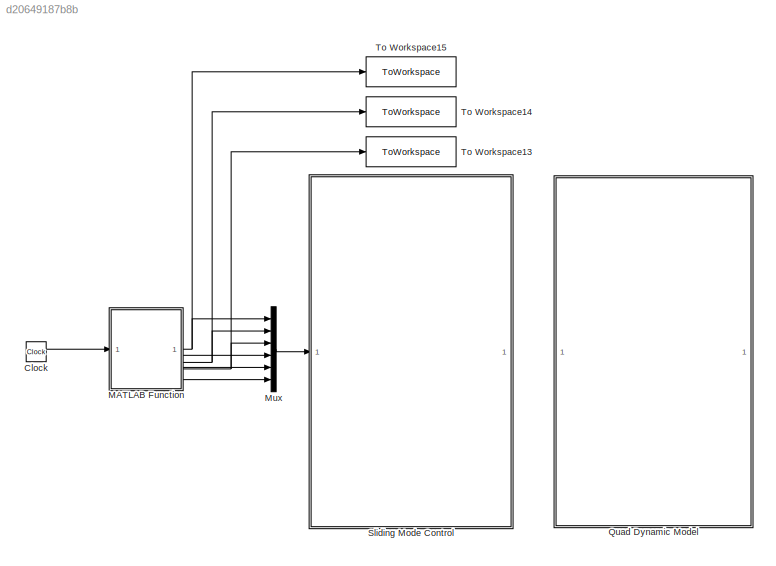
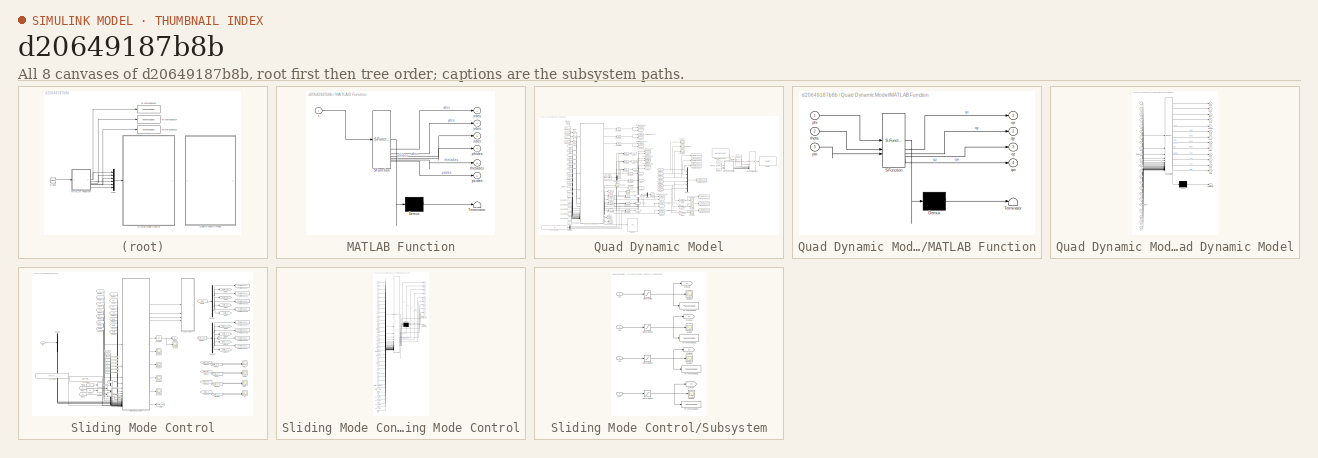
[diagram: thumbnail index - all 8 canvases of the model, root first then tree order]
MODEL slx_d20649187b8b
KIND model
CONFIG AbsTol = auto
CONFIG EnableMultiTasking = off
CONFIG FixedStep = 0.01
CONFIG InitFcn = C = [0; 0; 0];\n            % distance between camera and world frame\nang_initial = [0.0 0.0 0.0];  % initial orientation, [pi 0 pi/2] \n\ninit_pose = [C ; ang_initial'];\n\ndT=0.25;\ng = 9.81;\nmass = 1; L = 0.2; \nIx = 0.008; \nIy = 0.008;\nIz = 0.017;\nc = 0.088;\n\n
CONFIG MaxStep = auto
CONFIG MinStep = auto
CONFIG RelTol = 1e-3
CONFIG SampleTimeConstraint = Unconstrained
CONFIG SolverName = ode4
CONFIG StartTime = 0.0
CONFIG StopTime = 200
BLOCK [Clock] Clock
BLOCK [SubSystem] MATLAB Function
  ErrorFcn = Stateflow.Translate.translate
  PermitHierarchicalResolution = ExplicitOnly
  SFBlockType = MATLAB Function
  TreatAsAtomicUnit = on
BLOCK [Demux] MATLAB Function/ Demux 
  Outputs = 1
BLOCK [S-Function] MATLAB Function/ SFunction 
  EnableBusSupport = on
  FunctionName = sf_sfun
  PortCounts = [1 7]
  SFcnIsStateOwnerBlock = off
  SFunctionDeploymentMode = off
  Tag = Stateflow S-Function 1
BLOCK [Terminator] MATLAB Function/ Terminator 
BLOCK [Outport] MATLAB Function/phides
  Port = 4
BLOCK [Outport] MATLAB Function/psides
  Port = 6
BLOCK [Inport] MATLAB Function/t
BLOCK [Outport] MATLAB Function/thetades
  Port = 5
BLOCK [Outport] MATLAB Function/xdes
BLOCK [Outport] MATLAB Function/ydes
  Port = 2
BLOCK [Outport] MATLAB Function/zdes
  Port = 3
BLOCK [Mux] Mux
  DisplayOption = bar
  Inputs = 6
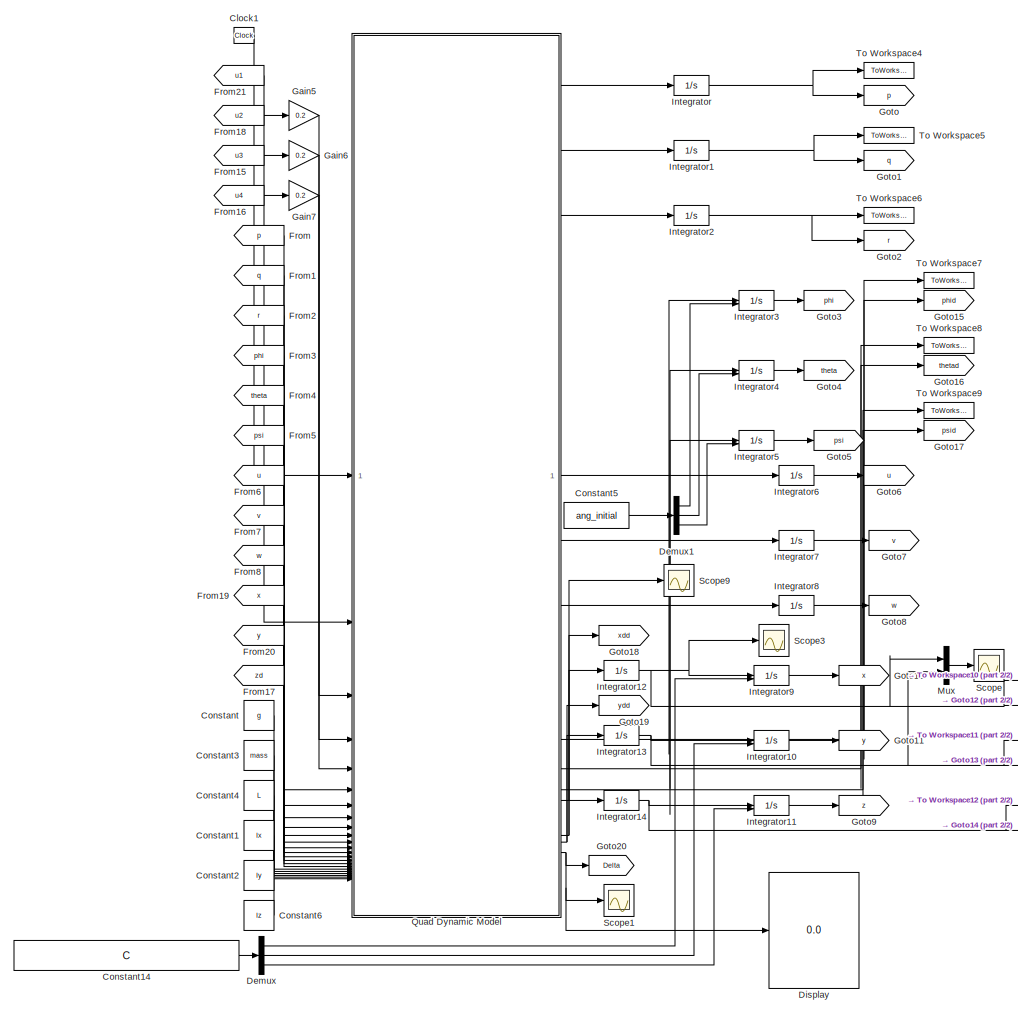
[diagram: Quad Dynamic Model - part 1/2, left side, full height]
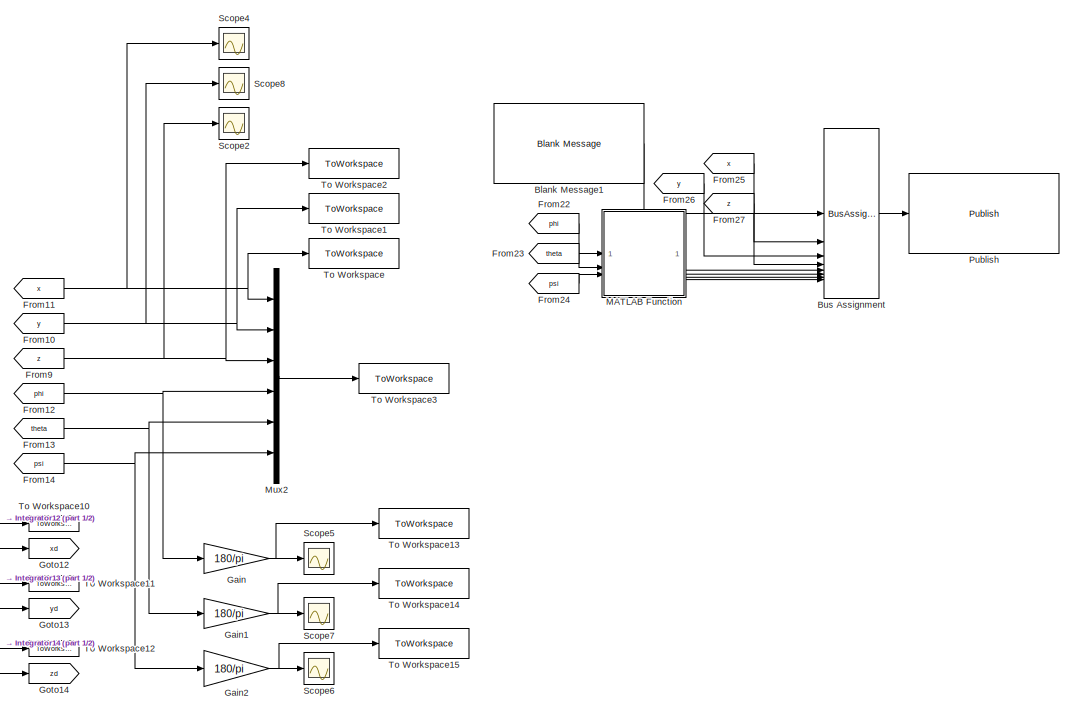
[diagram: Quad Dynamic Model - part 2/2, middle right region]
BLOCK [SubSystem] Quad Dynamic Model
BLOCK [Reference] Quad Dynamic Model/Blank Message1  REF=ros2lib/Blank Message  (lib defined in slx_3c1549211f48)
  SourceBlock = ros2lib/Blank Message
  SourceType = ROS2 Blank Message
BLOCK [BusAssignment] Quad Dynamic Model/Bus Assignment
  AssignedSignals = pose.position.x,pose.position.y,pose.position.z,pose.orientation.x,pose.orientation.y,pose.orientation.z,pose.orientation.w
BLOCK [Clock] Quad Dynamic Model/Clock1
BLOCK [Constant] Quad Dynamic Model/Constant
  Value = g
BLOCK [Constant] Quad Dynamic Model/Constant1
  Value = Ix
BLOCK [Constant] Quad Dynamic Model/Constant14
  Value = C
BLOCK [Constant] Quad Dynamic Model/Constant2
  Value = Iy
BLOCK [Constant] Quad Dynamic Model/Constant3
  Value = mass
BLOCK [Constant] Quad Dynamic Model/Constant4
  Value = L
BLOCK [Constant] Quad Dynamic Model/Constant5
  Value = ang_initial
BLOCK [Constant] Quad Dynamic Model/Constant6
  Value = Iz
BLOCK [Demux] Quad Dynamic Model/Demux
  Outputs = 3
BLOCK [Demux] Quad Dynamic Model/Demux1
  Outputs = 3
BLOCK [Display] Quad Dynamic Model/Display
  Decimation = 1
BLOCK [From] Quad Dynamic Model/From
  GotoTag = p
  TagVisibility = global
BLOCK [From] Quad Dynamic Model/From1
  GotoTag = q
  TagVisibility = global
BLOCK [From] Quad Dynamic Model/From10
  GotoTag = y
  TagVisibility = global
BLOCK [From] Quad Dynamic Model/From11
  GotoTag = x
  TagVisibility = global
BLOCK [From] Quad Dynamic Model/From12
  GotoTag = phi
  TagVisibility = global
BLOCK [From] Quad Dynamic Model/From13
  GotoTag = theta
  TagVisibility = global
BLOCK [From] Quad Dynamic Model/From14
  GotoTag = psi
  TagVisibility = global
BLOCK [From] Quad Dynamic Model/From15
  GotoTag = u3
  TagVisibility = global
BLOCK [From] Quad Dynamic Model/From16
  GotoTag = u4
  TagVisibility = global
BLOCK [From] Quad Dynamic Model/From17
  GotoTag = zd
  TagVisibility = global
BLOCK [From] Quad Dynamic Model/From18
  GotoTag = u2
  TagVisibility = global
BLOCK [From] Quad Dynamic Model/From19
  GotoTag = x
  TagVisibility = global
BLOCK [From] Quad Dynamic Model/From2
  GotoTag = r
  TagVisibility = global
BLOCK [From] Quad Dynamic Model/From20
  GotoTag = y
  TagVisibility = global
BLOCK [From] Quad Dynamic Model/From21
  GotoTag = u1
  TagVisibility = global
BLOCK [From] Quad Dynamic Model/From22
  GotoTag = phi
  TagVisibility = global
BLOCK [From] Quad Dynamic Model/From23
  GotoTag = theta
  TagVisibility = global
BLOCK [From] Quad Dynamic Model/From24
  GotoTag = psi
  TagVisibility = global
BLOCK [From] Quad Dynamic Model/From25
  GotoTag = x
  TagVisibility = global
BLOCK [From] Quad Dynamic Model/From26
  GotoTag = y
  TagVisibility = global
BLOCK [From] Quad Dynamic Model/From27
  GotoTag = z
  TagVisibility = global
BLOCK [From] Quad Dynamic Model/From3
  GotoTag = phi
  TagVisibility = global
BLOCK [From] Quad Dynamic Model/From4
  GotoTag = theta
  TagVisibility = global
BLOCK [From] Quad Dynamic Model/From5
  GotoTag = psi
  TagVisibility = global
BLOCK [From] Quad Dynamic Model/From6
  GotoTag = u
  TagVisibility = global
BLOCK [From] Quad Dynamic Model/From7
  GotoTag = v
  TagVisibility = global
BLOCK [From] Quad Dynamic Model/From8
  GotoTag = w
  TagVisibility = global
BLOCK [From] Quad Dynamic Model/From9
  GotoTag = z
  TagVisibility = global
BLOCK [Gain] Quad Dynamic Model/Gain
  Gain = 180/pi
BLOCK [Gain] Quad Dynamic Model/Gain1
  Gain = 180/pi
BLOCK [Gain] Quad Dynamic Model/Gain2
  Gain = 180/pi
BLOCK [Gain] Quad Dynamic Model/Gain5
  Gain = 0.2
BLOCK [Gain] Quad Dynamic Model/Gain6
  Gain = 0.2
BLOCK [Gain] Quad Dynamic Model/Gain7
  Gain = 0.2
BLOCK [Goto] Quad Dynamic Model/Goto
  GotoTag = p
  TagVisibility = global
BLOCK [Goto] Quad Dynamic Model/Goto1
  GotoTag = q
  TagVisibility = global
BLOCK [Goto] Quad Dynamic Model/Goto10
  GotoTag = x
  TagVisibility = global
BLOCK [Goto] Quad Dynamic Model/Goto11
  GotoTag = y
  TagVisibility = global
BLOCK [Goto] Quad Dynamic Model/Goto12
  GotoTag = xd
  TagVisibility = global
BLOCK [Goto] Quad Dynamic Model/Goto13
  GotoTag = yd
  TagVisibility = global
BLOCK [Goto] Quad Dynamic Model/Goto14
  GotoTag = zd
  TagVisibility = global
BLOCK [Goto] Quad Dynamic Model/Goto15
  GotoTag = phid
  TagVisibility = global
BLOCK [Goto] Quad Dynamic Model/Goto16
  GotoTag = thetad
  TagVisibility = global
BLOCK [Goto] Quad Dynamic Model/Goto17
  GotoTag = psid
  TagVisibility = global
BLOCK [Goto] Quad Dynamic Model/Goto18
  GotoTag = xdd
  TagVisibility = global
BLOCK [Goto] Quad Dynamic Model/Goto19
  GotoTag = ydd
  TagVisibility = global
BLOCK [Goto] Quad Dynamic Model/Goto2
  GotoTag = r
  TagVisibility = global
BLOCK [Goto] Quad Dynamic Model/Goto20
  GotoTag = Delta
  TagVisibility = global
BLOCK [Goto] Quad Dynamic Model/Goto3
  GotoTag = phi
  TagVisibility = global
BLOCK [Goto] Quad Dynamic Model/Goto4
  GotoTag = theta
  TagVisibility = global
BLOCK [Goto] Quad Dynamic Model/Goto5
  GotoTag = psi
  TagVisibility = global
BLOCK [Goto] Quad Dynamic Model/Goto6
  GotoTag = u
  TagVisibility = global
BLOCK [Goto] Quad Dynamic Model/Goto7
  GotoTag = v
  TagVisibility = global
BLOCK [Goto] Quad Dynamic Model/Goto8
  GotoTag = w
  TagVisibility = global
BLOCK [Goto] Quad Dynamic Model/Goto9
  GotoTag = z
  TagVisibility = global
BLOCK [Integrator] Quad Dynamic Model/Integrator
  InitialCondition = -0.003775510005653
BLOCK [Integrator] Quad Dynamic Model/Integrator1
  InitialCondition = 0.003931066952646
BLOCK [Integrator] Quad Dynamic Model/Integrator10
  InitialConditionSource = external
BLOCK [Integrator] Quad Dynamic Model/Integrator11
  InitialConditionSource = external
BLOCK [Integrator] Quad Dynamic Model/Integrator12
BLOCK [Integrator] Quad Dynamic Model/Integrator13
BLOCK [Integrator] Quad Dynamic Model/Integrator14
BLOCK [Integrator] Quad Dynamic Model/Integrator2
  InitialCondition = 0.005723309703171
BLOCK [Integrator] Quad Dynamic Model/Integrator3
  InitialConditionSource = external
BLOCK [Integrator] Quad Dynamic Model/Integrator4
  InitialConditionSource = external
BLOCK [Integrator] Quad Dynamic Model/Integrator5
  InitialConditionSource = external
BLOCK [Integrator] Quad Dynamic Model/Integrator6
BLOCK [Integrator] Quad Dynamic Model/Integrator7
BLOCK [Integrator] Quad Dynamic Model/Integrator8
BLOCK [Integrator] Quad Dynamic Model/Integrator9
  InitialConditionSource = external
BLOCK [SubSystem] Quad Dynamic Model/MATLAB Function
  ErrorFcn = Stateflow.Translate.translate
  PermitHierarchicalResolution = ExplicitOnly
  SFBlockType = MATLAB Function
  TreatAsAtomicUnit = on
BLOCK [Demux] Quad Dynamic Model/MATLAB Function/ Demux 
  Outputs = 1
BLOCK [S-Function] Quad Dynamic Model/MATLAB Function/ SFunction 
  EnableBusSupport = on
  FunctionName = sf_sfun
  PortCounts = [3 5]
  SFcnIsStateOwnerBlock = off
  SFunctionDeploymentMode = off
  Tag = Stateflow S-Function 3
BLOCK [Terminator] Quad Dynamic Model/MATLAB Function/ Terminator 
BLOCK [Inport] Quad Dynamic Model/MATLAB Function/phi
BLOCK [Inport] Quad Dynamic Model/MATLAB Function/psi
  Port = 3
BLOCK [Outport] Quad Dynamic Model/MATLAB Function/qw
  Port = 4
BLOCK [Outport] Quad Dynamic Model/MATLAB Function/qx
BLOCK [Outport] Quad Dynamic Model/MATLAB Function/qy
  Port = 2
BLOCK [Outport] Quad Dynamic Model/MATLAB Function/qz
  Port = 3
BLOCK [Inport] Quad Dynamic Model/MATLAB Function/theta
  Port = 2
BLOCK [Mux] Quad Dynamic Model/Mux
  DisplayOption = bar
  Inputs = 2
BLOCK [Mux] Quad Dynamic Model/Mux2
  DisplayOption = bar
  Inputs = 6
BLOCK [Reference] Quad Dynamic Model/Publish  REF=ros2lib/Publish  (lib defined in slx_3c1549211f48)
  SourceBlock = ros2lib/Publish
  SourceType = ROS2 Publish
BLOCK [SubSystem] Quad Dynamic Model/Quad Dynamic Model
  ErrorFcn = Stateflow.Translate.translate
  PermitHierarchicalResolution = ExplicitOnly
  SFBlockType = MATLAB Function
  TreatAsAtomicUnit = on
BLOCK [Demux] Quad Dynamic Model/Quad Dynamic Model/ Demux 
  Outputs = 1
BLOCK [S-Function] Quad Dynamic Model/Quad Dynamic Model/ SFunction 
  EnableBusSupport = on
  FunctionName = sf_sfun
  PortCounts = [23 14]
  SFcnIsStateOwnerBlock = off
  SFunctionDeploymentMode = off
  Tag = Stateflow S-Function 2
BLOCK [Terminator] Quad Dynamic Model/Quad Dynamic Model/ Terminator 
BLOCK [Outport] Quad Dynamic Model/Quad Dynamic Model/Delta
  Port = 13
BLOCK [Inport] Quad Dynamic Model/Quad Dynamic Model/Ixx
  Port = 21
BLOCK [Inport] Quad Dynamic Model/Quad Dynamic Model/Iyy
  Port = 22
BLOCK [Inport] Quad Dynamic Model/Quad Dynamic Model/Izz
  Port = 23
BLOCK [Inport] Quad Dynamic Model/Quad Dynamic Model/L
  Port = 20
BLOCK [Inport] Quad Dynamic Model/Quad Dynamic Model/g
  Port = 18
BLOCK [Inport] Quad Dynamic Model/Quad Dynamic Model/mass
  Port = 19
BLOCK [Inport] Quad Dynamic Model/Quad Dynamic Model/p
  Port = 6
BLOCK [Outport] Quad Dynamic Model/Quad Dynamic Model/pdot
BLOCK [Inport] Quad Dynamic Model/Quad Dynamic Model/phi
  Port = 9
BLOCK [Outport] Quad Dynamic Model/Quad Dynamic Model/phid
  Port = 4
BLOCK [Inport] Quad Dynamic Model/Quad Dynamic Model/psi
  Port = 11
BLOCK [Outport] Quad Dynamic Model/Quad Dynamic Model/psid
  Port = 6
BLOCK [Inport] Quad Dynamic Model/Quad Dynamic Model/q
  Port = 7
BLOCK [Outport] Quad Dynamic Model/Quad Dynamic Model/qdot
  Port = 2
BLOCK [Inport] Quad Dynamic Model/Quad Dynamic Model/r
  Port = 8
BLOCK [Outport] Quad Dynamic Model/Quad Dynamic Model/rdot
  Port = 3
BLOCK [Inport] Quad Dynamic Model/Quad Dynamic Model/t
BLOCK [Inport] Quad Dynamic Model/Quad Dynamic Model/theta
  Port = 10
BLOCK [Outport] Quad Dynamic Model/Quad Dynamic Model/thetad
  Port = 5
BLOCK [Inport] Quad Dynamic Model/Quad Dynamic Model/u
  Port = 12
BLOCK [Inport] Quad Dynamic Model/Quad Dynamic Model/u1
  Port = 2
BLOCK [Inport] Quad Dynamic Model/Quad Dynamic Model/u2
  Port = 3
BLOCK [Inport] Quad Dynamic Model/Quad Dynamic Model/u3
  Port = 4
BLOCK [Inport] Quad Dynamic Model/Quad Dynamic Model/u4
  Port = 5
BLOCK [Outport] Quad Dynamic Model/Quad Dynamic Model/udot
  Port = 7
BLOCK [Inport] Quad Dynamic Model/Quad Dynamic Model/v
  Port = 13
BLOCK [Outport] Quad Dynamic Model/Quad Dynamic Model/vdot
  Port = 8
BLOCK [Inport] Quad Dynamic Model/Quad Dynamic Model/w
  Port = 14
BLOCK [Outport] Quad Dynamic Model/Quad Dynamic Model/wdot
  Port = 9
BLOCK [Inport] Quad Dynamic Model/Quad Dynamic Model/x
  Port = 15
BLOCK [Outport] Quad Dynamic Model/Quad Dynamic Model/xdd
  Port = 10
BLOCK [Inport] Quad Dynamic Model/Quad Dynamic Model/y
  Port = 16
BLOCK [Outport] Quad Dynamic Model/Quad Dynamic Model/ydd
  Port = 11
BLOCK [Inport] Quad Dynamic Model/Quad Dynamic Model/zd
  Port = 17
BLOCK [Outport] Quad Dynamic Model/Quad Dynamic Model/zdd
  Port = 12
BLOCK [Scope] Quad Dynamic Model/Scope
  Floating = off
  NumInputPorts = 1
  ScopeSpecificationString = Simulink.scopes.TimeScopeBlockCfg('CurrentConfiguration', extmgr.ConfigurationSet(extmgr.Configuration('Core','General UI',true),extmgr.Configuration('Core','Source UI',true),extmgr.Configuration('Sources','WiredSimulink',true,'DataLoggingVariableName','ScopeData2'),extmgr.Configuration('Visuals','Time Domain',true,'SerializedDisplays',{struct('MinYLimReal','-0.08367','MaxYLimReal','0.08367','YLab...<+1554ch>
BLOCK [Scope] Quad Dynamic Model/Scope1
  Floating = off
  NumInputPorts = 1
  ScopeSpecificationString = Simulink.scopes.TimeScopeBlockCfg('CurrentConfiguration', extmgr.ConfigurationSet(extmgr.Configuration('Core','General UI',true),extmgr.Configuration('Core','Source UI',true),extmgr.Configuration('Sources','WiredSimulink',true,'DataLoggingVariableName','ScopeData1'),extmgr.Configuration('Visuals','Time Domain',true,'SerializedDisplays',{struct('MinYLimReal','-0.625','MaxYLimReal','0.625','YLabelRe...<+1617ch>
BLOCK [Scope] Quad Dynamic Model/Scope2
  Floating = off
  NumInputPorts = 1
  ScopeSpecificationString = Simulink.scopes.TimeScopeBlockCfg('CurrentConfiguration', extmgr.ConfigurationSet(extmgr.Configuration('Core','General UI',true),extmgr.Configuration('Core','Source UI',true),extmgr.Configuration('Sources','WiredSimulink',true,'DataLoggingVariableName','ScopeData2'),extmgr.Configuration('Visuals','Time Domain',true,'SerializedDisplays',{struct('MinYLimReal','-0.25379','MaxYLimReal','2.25395','YLab...<+1556ch>
BLOCK [Scope] Quad Dynamic Model/Scope3
  Floating = off
  NumInputPorts = 1
  ScopeSpecificationString = Simulink.scopes.TimeScopeBlockCfg('CurrentConfiguration', extmgr.ConfigurationSet(extmgr.Configuration('Core','General UI',true),extmgr.Configuration('Core','Source UI',true),extmgr.Configuration('Sources','WiredSimulink',true,'DataLoggingVariableName','ScopeData4'),extmgr.Configuration('Visuals','Time Domain',true,'SerializedDisplays',{struct('MinYLimReal','-0.10666','MaxYLimReal','0.11061','YLab...<+1566ch>
BLOCK [Scope] Quad Dynamic Model/Scope4
  Floating = off
  NumInputPorts = 1
  ScopeSpecificationString = Simulink.scopes.TimeScopeBlockCfg('CurrentConfiguration', extmgr.ConfigurationSet(extmgr.Configuration('Core','General UI',true),extmgr.Configuration('Core','Source UI',true),extmgr.Configuration('Sources','WiredSimulink',true,'DataLoggingVariableName','ScopeData3'),extmgr.Configuration('Visuals','Time Domain',true,'SerializedDisplays',{struct('MinYLimReal','-0.03404','MaxYLimReal','0.23647','YLab...<+1543ch>
BLOCK [Scope] Quad Dynamic Model/Scope5
  Floating = off
  NumInputPorts = 1
  ScopeSpecificationString = Simulink.scopes.TimeScopeBlockCfg('CurrentConfiguration', extmgr.ConfigurationSet(extmgr.Configuration('Core','General UI',true),extmgr.Configuration('Core','Source UI',true),extmgr.Configuration('Sources','WiredSimulink',true,'DataLoggingVariableName','ScopeData4'),extmgr.Configuration('Visuals','Time Domain',true,'SerializedDisplays',{struct('MinYLimReal','-0.47265','MaxYLimReal','0.4732','YLabe...<+1542ch>
BLOCK [Scope] Quad Dynamic Model/Scope6
  Floating = off
  NumInputPorts = 1
  ScopeSpecificationString = Simulink.scopes.TimeScopeBlockCfg('CurrentConfiguration', extmgr.ConfigurationSet(extmgr.Configuration('Core','General UI',true),extmgr.Configuration('Core','Source UI',true),extmgr.Configuration('Sources','WiredSimulink',true,'DataLoggingVariableName','ScopeData5'),extmgr.Configuration('Visuals','Time Domain',true,'SerializedDisplays',{struct('MinYLimReal','-0.3925','MaxYLimReal','0.1772','YLabel...<+1524ch>
BLOCK [Scope] Quad Dynamic Model/Scope7
  Floating = off
  NumInputPorts = 1
  ScopeSpecificationString = Simulink.scopes.TimeScopeBlockCfg('CurrentConfiguration', extmgr.ConfigurationSet(extmgr.Configuration('Core','General UI',true),extmgr.Configuration('Core','Source UI',true),extmgr.Configuration('Sources','WiredSimulink',true,'DataLoggingVariableName','ScopeData6'),extmgr.Configuration('Visuals','Time Domain',true,'SerializedDisplays',{struct('MinYLimReal','-0.48663','MaxYLimReal','0.58015','YLab...<+1530ch>
BLOCK [Scope] Quad Dynamic Model/Scope8
  Floating = off
  NumInputPorts = 1
  ScopeSpecificationString = Simulink.scopes.TimeScopeBlockCfg('CurrentConfiguration', extmgr.ConfigurationSet(extmgr.Configuration('Core','General UI',true),extmgr.Configuration('Core','Source UI',true),extmgr.Configuration('Sources','WiredSimulink',true,'DataLoggingVariableName','ScopeData1'),extmgr.Configuration('Visuals','Time Domain',true,'SerializedDisplays',{struct('MinYLimReal','-0.1253','MaxYLimReal','1.12526','YLabe...<+1535ch>
BLOCK [Scope] Quad Dynamic Model/Scope9
  Floating = off
  NumInputPorts = 1
  ScopeSpecificationString = Simulink.scopes.TimeScopeBlockCfg('CurrentConfiguration', extmgr.ConfigurationSet(extmgr.Configuration('Core','General UI',true),extmgr.Configuration('Core','Source UI',true),extmgr.Configuration('Sources','WiredSimulink',true,'DataLoggingVariableName','ScopeData5'),extmgr.Configuration('Visuals','Time Domain',true,'SerializedDisplays',{struct('MinYLimReal','-0.0733','MaxYLimReal','0.08311','YLabe...<+1545ch>
BLOCK [ToWorkspace] Quad Dynamic Model/To Workspace
  FixptAsFi = on
  MaxDataPoints = inf
  SampleTime = -1
  Save2DSignal = 2-D array (concatenate along first dimension)
  VariableName = x
BLOCK [ToWorkspace] Quad Dynamic Model/To Workspace1
  FixptAsFi = on
  MaxDataPoints = inf
  SampleTime = -1
  Save2DSignal = 2-D array (concatenate along first dimension)
  VariableName = y
BLOCK [ToWorkspace] Quad Dynamic Model/To Workspace10
  FixptAsFi = on
  MaxDataPoints = inf
  SampleTime = -1
  VariableName = xd
BLOCK [ToWorkspace] Quad Dynamic Model/To Workspace11
  FixptAsFi = on
  MaxDataPoints = inf
  SampleTime = -1
  VariableName = yd
BLOCK [ToWorkspace] Quad Dynamic Model/To Workspace12
  FixptAsFi = on
  MaxDataPoints = inf
  SampleTime = -1
  VariableName = zd
BLOCK [ToWorkspace] Quad Dynamic Model/To Workspace13
  FixptAsFi = on
  MaxDataPoints = inf
  SampleTime = -1
  Save2DSignal = 2-D array (concatenate along first dimension)
  VariableName = phi
BLOCK [ToWorkspace] Quad Dynamic Model/To Workspace14
  FixptAsFi = on
  MaxDataPoints = inf
  SampleTime = -1
  Save2DSignal = 2-D array (concatenate along first dimension)
  VariableName = theta
BLOCK [ToWorkspace] Quad Dynamic Model/To Workspace15
  FixptAsFi = on
  MaxDataPoints = inf
  SampleTime = -1
  Save2DSignal = 2-D array (concatenate along first dimension)
  VariableName = psi
BLOCK [ToWorkspace] Quad Dynamic Model/To Workspace2
  FixptAsFi = on
  MaxDataPoints = inf
  SampleTime = -1
  Save2DSignal = 2-D array (concatenate along first dimension)
  VariableName = z
BLOCK [ToWorkspace] Quad Dynamic Model/To Workspace3
  FixptAsFi = on
  MaxDataPoints = inf
  SampleTime = -1
  Save2DSignal = 2-D array (concatenate along first dimension)
  VariableName = pose
BLOCK [ToWorkspace] Quad Dynamic Model/To Workspace4
  FixptAsFi = on
  MaxDataPoints = inf
  SampleTime = -1
  VariableName = p
BLOCK [ToWorkspace] Quad Dynamic Model/To Workspace5
  FixptAsFi = on
  MaxDataPoints = inf
  SampleTime = -1
  VariableName = q
BLOCK [ToWorkspace] Quad Dynamic Model/To Workspace6
  FixptAsFi = on
  MaxDataPoints = inf
  SampleTime = -1
  VariableName = r
BLOCK [ToWorkspace] Quad Dynamic Model/To Workspace7
  FixptAsFi = on
  MaxDataPoints = inf
  SampleTime = -1
  VariableName = phid
BLOCK [ToWorkspace] Quad Dynamic Model/To Workspace8
  FixptAsFi = on
  MaxDataPoints = inf
  SampleTime = -1
  VariableName = thetad
BLOCK [ToWorkspace] Quad Dynamic Model/To Workspace9
  FixptAsFi = on
  MaxDataPoints = inf
  SampleTime = -1
  VariableName = psid
BLOCK [SubSystem] Sliding Mode Control
BLOCK [Scope] Sliding Mode Control/Alt
  Floating = off
  NumInputPorts = 2
  ScopeSpecificationString = Simulink.scopes.TimeScopeBlockCfg('CurrentConfiguration', extmgr.ConfigurationSet(extmgr.Configuration('Core','General UI',true),extmgr.Configuration('Core','Source UI',true),extmgr.Configuration('Sources','WiredSimulink',true,'DataLoggingVariableName','ScopeData1'),extmgr.Configuration('Visuals','Time Domain',true,'SerializedDisplays',{struct('MinYLimReal','-30.07624','MaxYLimReal','26.81308','YL...<+1550ch>
BLOCK [Clock] Sliding Mode Control/Clock
BLOCK [Constant] Sliding Mode Control/Constant
  Value = g
BLOCK [Constant] Sliding Mode Control/Constant1
  Value = mass
BLOCK [Constant] Sliding Mode Control/Constant10
  Value = Iz
BLOCK [Constant] Sliding Mode Control/Constant2
  Value = L
BLOCK [Constant] Sliding Mode Control/Constant3
  Value = Ix
BLOCK [Constant] Sliding Mode Control/Constant4
  Value = Iy
BLOCK [Constant] Sliding Mode Control/Constant5
  Value = c
BLOCK [Constant] Sliding Mode Control/Constant8
  Value = -1 + (1 - (-1)) .* rand(14, 10)
BLOCK [Constant] Sliding Mode Control/Constant9
  Value = 1.2 + (4.2 - 1.2) * rand(10, 1)
BLOCK [Demux] Sliding Mode Control/Demux
  Outputs = 6
BLOCK [Demux] Sliding Mode Control/Demux1
BLOCK [Demux] Sliding Mode Control/Demux2
BLOCK [From] Sliding Mode Control/From
  GotoTag = u2
  TagVisibility = global
BLOCK [From] Sliding Mode Control/From1
  GotoTag = xd
  TagVisibility = global
BLOCK [From] Sliding Mode Control/From10
  GotoTag = Delta_phi
BLOCK [From] Sliding Mode Control/From11
  GotoTag = Delta_theta
BLOCK [From] Sliding Mode Control/From12
  GotoTag = Delta_psi
BLOCK [From] Sliding Mode Control/From13
  GotoTag = Delta_z
BLOCK [From] Sliding Mode Control/From14
  GotoTag = zd
  TagVisibility = global
BLOCK [From] Sliding Mode Control/From15
  GotoTag = phi
  TagVisibility = global
BLOCK [From] Sliding Mode Control/From16
  GotoTag = theta
  TagVisibility = global
BLOCK [From] Sliding Mode Control/From17
  GotoTag = psi
  TagVisibility = global
BLOCK [From] Sliding Mode Control/From18
  GotoTag = phid
  TagVisibility = global
BLOCK [From] Sliding Mode Control/From19
  GotoTag = thetad
  TagVisibility = global
BLOCK [From] Sliding Mode Control/From2
  GotoTag = yd
  TagVisibility = global
BLOCK [From] Sliding Mode Control/From20
  GotoTag = psid
  TagVisibility = global
BLOCK [From] Sliding Mode Control/From21
  GotoTag = y
  TagVisibility = global
BLOCK [From] Sliding Mode Control/From22
  GotoTag = x
  TagVisibility = global
BLOCK [From] Sliding Mode Control/From23
  GotoTag = z
  TagVisibility = global
BLOCK [From] Sliding Mode Control/From24
  GotoTag = xdd
  TagVisibility = global
BLOCK [From] Sliding Mode Control/From25
  GotoTag = ydd
  TagVisibility = global
BLOCK [From] Sliding Mode Control/From26
  GotoTag = Delta_h_phi
BLOCK [From] Sliding Mode Control/From27
  GotoTag = Delta_h_theta
BLOCK [From] Sliding Mode Control/From28
  GotoTag = Delta_h_psi
BLOCK [From] Sliding Mode Control/From29
  GotoTag = Delta_h_z
BLOCK [From] Sliding Mode Control/From3
  GotoTag = u3
  TagVisibility = global
BLOCK [From] Sliding Mode Control/From30
  GotoTag = Delta_hat
  TagVisibility = global
BLOCK [From] Sliding Mode Control/From4
  GotoTag = u4
  TagVisibility = global
BLOCK [From] Sliding Mode Control/From5
  GotoTag = u1
  TagVisibility = global
BLOCK [From] Sliding Mode Control/From7
  GotoTag = W
  TagVisibility = global
BLOCK [From] Sliding Mode Control/From9
  GotoTag = Delta
  TagVisibility = global
BLOCK [Gain] Sliding Mode Control/Gain1
  Gain = 4.5
BLOCK [Goto] Sliding Mode Control/Goto
  GotoTag = Delta_hat
  TagVisibility = global
BLOCK [Goto] Sliding Mode Control/Goto1
  GotoTag = Delta_phi
BLOCK [Goto] Sliding Mode Control/Goto10
  GotoTag = Delta_h_psi
BLOCK [Goto] Sliding Mode Control/Goto11
  GotoTag = Delta_h_z
BLOCK [Goto] Sliding Mode Control/Goto2
  GotoTag = Delta_theta
BLOCK [Goto] Sliding Mode Control/Goto3
  GotoTag = Delta_psi
BLOCK [Goto] Sliding Mode Control/Goto4
  GotoTag = Delta_z
BLOCK [Goto] Sliding Mode Control/Goto6
  GotoTag = W
  TagVisibility = global
BLOCK [Goto] Sliding Mode Control/Goto8
  GotoTag = Delta_h_phi
BLOCK [Goto] Sliding Mode Control/Goto9
  GotoTag = Delta_h_theta
BLOCK [Inport] Sliding Mode Control/In1
BLOCK [Integrator] Sliding Mode Control/Integrator8
  InitialCondition = zeros(10, 4)
BLOCK [Memory] Sliding Mode Control/Memory
BLOCK [Memory] Sliding Mode Control/Memory1
BLOCK [Memory] Sliding Mode Control/Memory2
BLOCK [Memory] Sliding Mode Control/Memory3
BLOCK [Scope] Sliding Mode Control/Phi
  Floating = off
  NumInputPorts = 2
  ScopeSpecificationString = Simulink.scopes.TimeScopeBlockCfg('CurrentConfiguration', extmgr.ConfigurationSet(extmgr.Configuration('Core','General UI',true),extmgr.Configuration('Core','Source UI',true),extmgr.Configuration('Sources','WiredSimulink',true,'DataLoggingVariableName','ScopeData2'),extmgr.Configuration('Visuals','Time Domain',true,'SerializedDisplays',{struct('MinYLimReal','-6.6449','MaxYLimReal','6.65264','YLabe...<+1544ch>
BLOCK [Scope] Sliding Mode Control/Psi
  Floating = off
  NumInputPorts = 2
  ScopeSpecificationString = Simulink.scopes.TimeScopeBlockCfg('CurrentConfiguration', extmgr.ConfigurationSet(extmgr.Configuration('Core','General UI',true),extmgr.Configuration('Core','Source UI',true),extmgr.Configuration('Sources','WiredSimulink',true,'DataLoggingVariableName','ScopeData3'),extmgr.Configuration('Visuals','Time Domain',true,'SerializedDisplays',{struct('MinYLimReal','-2.63411','MaxYLimReal','2.84561','YLab...<+1558ch>
BLOCK [Scope] Sliding Mode Control/Scope
  Floating = off
  NumInputPorts = 1
  ScopeSpecificationString = Simulink.scopes.TimeScopeBlockCfg('CurrentConfiguration', extmgr.ConfigurationSet(extmgr.Configuration('Core','General UI',true),extmgr.Configuration('Core','Source UI',true),extmgr.Configuration('Sources','WiredSimulink',true,'DataLoggingVariableName','ScopeData1'),extmgr.Configuration('Visuals','Time Domain',true,'SerializedDisplays',{struct('MinYLimReal','-13.79802','MaxYLimReal','24.62049','YL...<+2191ch>
BLOCK [Scope] Sliding Mode Control/Scope4
  Floating = off
  NumInputPorts = 1
  ScopeSpecificationString = Simulink.scopes.TimeScopeBlockCfg('CurrentConfiguration', extmgr.ConfigurationSet(extmgr.Configuration('Core','General UI',true),extmgr.Configuration('Core','Source UI',true),extmgr.Configuration('Sources','WiredSimulink',true,'DataLoggingVariableName','ScopeData1'),extmgr.Configuration('Visuals','Time Domain',true,'SerializedDisplays',{struct('MinYLimReal','-16.875','MaxYLimReal','1.875','YLabelR...<+1536ch>
BLOCK [Scope] Sliding Mode Control/Scope5
  Floating = off
  NumInputPorts = 1
  ScopeSpecificationString = Simulink.scopes.TimeScopeBlockCfg('CurrentConfiguration', extmgr.ConfigurationSet(extmgr.Configuration('Core','General UI',true),extmgr.Configuration('Core','Source UI',true),extmgr.Configuration('Sources','WiredSimulink',true,'DataLoggingVariableName','ScopeData2'),extmgr.Configuration('Visuals','Time Domain',true,'SerializedDisplays',{struct('MinYLimReal','-0.1099','MaxYLimReal','0.56678','YLabe...<+1542ch>
BLOCK [Scope] Sliding Mode Control/Scope6
  Floating = off
  NumInputPorts = 1
  ScopeSpecificationString = Simulink.scopes.TimeScopeBlockCfg('CurrentConfiguration', extmgr.ConfigurationSet(extmgr.Configuration('Core','General UI',true),extmgr.Configuration('Core','Source UI',true),extmgr.Configuration('Sources','WiredSimulink',true,'DataLoggingVariableName','ScopeData3'),extmgr.Configuration('Visuals','Time Domain',true,'SerializedDisplays',{struct('MinYLimReal','-0.00442','MaxYLimReal','0.00049','YLab...<+1544ch>
BLOCK [Scope] Sliding Mode Control/Scope7
  Floating = off
  NumInputPorts = 1
  ScopeSpecificationString = Simulink.scopes.TimeScopeBlockCfg('CurrentConfiguration', extmgr.ConfigurationSet(extmgr.Configuration('Core','General UI',true),extmgr.Configuration('Core','Source UI',true),extmgr.Configuration('Sources','WiredSimulink',true,'DataLoggingVariableName','ScopeData4'),extmgr.Configuration('Visuals','Time Domain',true,'SerializedDisplays',{struct('MinYLimReal','-0.00644','MaxYLimReal','0.00072','YLab...<+1544ch>
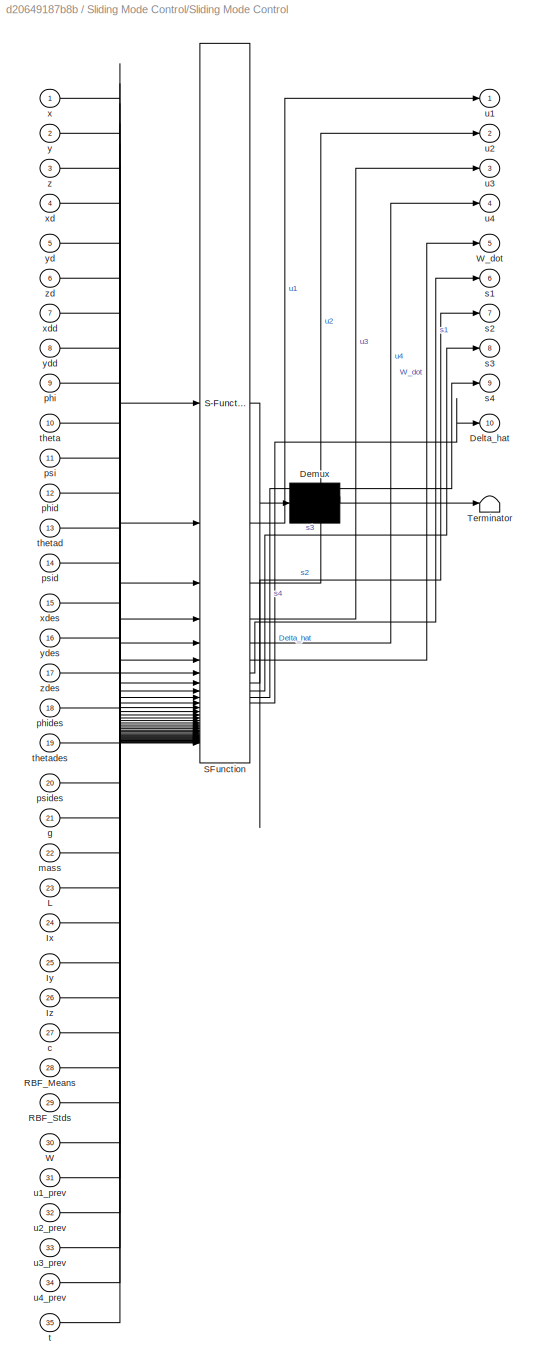
BLOCK [SubSystem] Sliding Mode Control/Sliding Mode Control
  ErrorFcn = Stateflow.Translate.translate
  PermitHierarchicalResolution = ExplicitOnly
  SFBlockType = MATLAB Function
  TreatAsAtomicUnit = on
BLOCK [Demux] Sliding Mode Control/Sliding Mode Control/ Demux 
  Outputs = 1
BLOCK [S-Function] Sliding Mode Control/Sliding Mode Control/ SFunction 
  EnableBusSupport = on
  FunctionName = sf_sfun
  PortCounts = [35 11]
  SFcnIsStateOwnerBlock = off
  SFunctionDeploymentMode = off
  Tag = Stateflow S-Function 7
BLOCK [Terminator] Sliding Mode Control/Sliding Mode Control/ Terminator 
BLOCK [Outport] Sliding Mode Control/Sliding Mode Control/Delta_hat
  Port = 10
BLOCK [Inport] Sliding Mode Control/Sliding Mode Control/Ix
  Port = 24
BLOCK [Inport] Sliding Mode Control/Sliding Mode Control/Iy
  Port = 25
BLOCK [Inport] Sliding Mode Control/Sliding Mode Control/Iz
  Port = 26
BLOCK [Inport] Sliding Mode Control/Sliding Mode Control/L
  Port = 23
BLOCK [Inport] Sliding Mode Control/Sliding Mode Control/RBF_Means
  Port = 28
BLOCK [Inport] Sliding Mode Control/Sliding Mode Control/RBF_Stds
  Port = 29
BLOCK [Inport] Sliding Mode Control/Sliding Mode Control/W
  Port = 30
BLOCK [Outport] Sliding Mode Control/Sliding Mode Control/W_dot
  Port = 5
BLOCK [Inport] Sliding Mode Control/Sliding Mode Control/c
  Port = 27
BLOCK [Inport] Sliding Mode Control/Sliding Mode Control/g
  Port = 21
BLOCK [Inport] Sliding Mode Control/Sliding Mode Control/mass
  Port = 22
BLOCK [Inport] Sliding Mode Control/Sliding Mode Control/phi
  Port = 9
BLOCK [Inport] Sliding Mode Control/Sliding Mode Control/phid
  Port = 12
BLOCK [Inport] Sliding Mode Control/Sliding Mode Control/phides
  Port = 18
BLOCK [Inport] Sliding Mode Control/Sliding Mode Control/psi
  Port = 11
BLOCK [Inport] Sliding Mode Control/Sliding Mode Control/psid
  Port = 14
BLOCK [Inport] Sliding Mode Control/Sliding Mode Control/psides
  Port = 20
BLOCK [Outport] Sliding Mode Control/Sliding Mode Control/s1
  Port = 6
BLOCK [Outport] Sliding Mode Control/Sliding Mode Control/s2
  Port = 7
BLOCK [Outport] Sliding Mode Control/Sliding Mode Control/s3
  Port = 8
BLOCK [Outport] Sliding Mode Control/Sliding Mode Control/s4
  Port = 9
BLOCK [Inport] Sliding Mode Control/Sliding Mode Control/t
  Port = 35
BLOCK [Inport] Sliding Mode Control/Sliding Mode Control/theta
  Port = 10
BLOCK [Inport] Sliding Mode Control/Sliding Mode Control/thetad
  Port = 13
BLOCK [Inport] Sliding Mode Control/Sliding Mode Control/thetades
  Port = 19
BLOCK [Outport] Sliding Mode Control/Sliding Mode Control/u1
BLOCK [Inport] Sliding Mode Control/Sliding Mode Control/u1_prev
  Port = 31
BLOCK [Outport] Sliding Mode Control/Sliding Mode Control/u2
  Port = 2
BLOCK [Inport] Sliding Mode Control/Sliding Mode Control/u2_prev
  Port = 32
BLOCK [Outport] Sliding Mode Control/Sliding Mode Control/u3
  Port = 3
BLOCK [Inport] Sliding Mode Control/Sliding Mode Control/u3_prev
  Port = 33
BLOCK [Outport] Sliding Mode Control/Sliding Mode Control/u4
  Port = 4
BLOCK [Inport] Sliding Mode Control/Sliding Mode Control/u4_prev
  Port = 34
BLOCK [Inport] Sliding Mode Control/Sliding Mode Control/x
BLOCK [Inport] Sliding Mode Control/Sliding Mode Control/xd
  Port = 4
BLOCK [Inport] Sliding Mode Control/Sliding Mode Control/xdd
  Port = 7
BLOCK [Inport] Sliding Mode Control/Sliding Mode Control/xdes
  Port = 15
BLOCK [Inport] Sliding Mode Control/Sliding Mode Control/y
  Port = 2
BLOCK [Inport] Sliding Mode Control/Sliding Mode Control/yd
  Port = 5
BLOCK [Inport] Sliding Mode Control/Sliding Mode Control/ydd
  Port = 8
BLOCK [Inport] Sliding Mode Control/Sliding Mode Control/ydes
  Port = 16
BLOCK [Inport] Sliding Mode Control/Sliding Mode Control/z
  Port = 3
BLOCK [Inport] Sliding Mode Control/Sliding Mode Control/zd
  Port = 6
BLOCK [Inport] Sliding Mode Control/Sliding Mode Control/zdes
  Port = 17
BLOCK [SubSystem] Sliding Mode Control/Subsystem
BLOCK [Goto] Sliding Mode Control/Subsystem/Goto1
  GotoTag = u1
  TagVisibility = global
BLOCK [Goto] Sliding Mode Control/Subsystem/Goto2
  GotoTag = u2
  TagVisibility = global
BLOCK [Goto] Sliding Mode Control/Subsystem/Goto3
  GotoTag = u3
  TagVisibility = global
BLOCK [Goto] Sliding Mode Control/Subsystem/Goto4
  GotoTag = u4
  TagVisibility = global
BLOCK [Inport] Sliding Mode Control/Subsystem/In1
BLOCK [Inport] Sliding Mode Control/Subsystem/In2
  Port = 2
BLOCK [Inport] Sliding Mode Control/Subsystem/In3
  Port = 3
BLOCK [Inport] Sliding Mode Control/Subsystem/In4
  Port = 4
BLOCK [Saturate] Sliding Mode Control/Subsystem/Saturation
  LowerLimit = -350
  UpperLimit = 400
BLOCK [Saturate] Sliding Mode Control/Subsystem/Saturation1
  LowerLimit = -8
  UpperLimit = 8
BLOCK [Saturate] Sliding Mode Control/Subsystem/Saturation2
  LowerLimit = -8
  UpperLimit = 8
BLOCK [Saturate] Sliding Mode Control/Subsystem/Saturation3
  LowerLimit = -3
  UpperLimit = 4
BLOCK [Scope] Sliding Mode Control/Subsystem/Scope
  Floating = off
  NumInputPorts = 1
  ScopeSpecificationString = Simulink.scopes.TimeScopeBlockCfg('CurrentConfiguration', extmgr.ConfigurationSet(extmgr.Configuration('Core','General UI',true),extmgr.Configuration('Core','Source UI',true),extmgr.Configuration('Sources','WiredSimulink',true,'DataLoggingVariableName','ScopeData7'),extmgr.Configuration('Visuals','Time Domain',true,'SerializedDisplays',{struct('MinYLimReal','-0.26035','MaxYLimReal','0.25824','YLab...<+1524ch>
BLOCK [Scope] Sliding Mode Control/Subsystem/Scope1
  Floating = off
  NumInputPorts = 1
  ScopeSpecificationString = Simulink.scopes.TimeScopeBlockCfg('CurrentConfiguration', extmgr.ConfigurationSet(extmgr.Configuration('Core','General UI',true),extmgr.Configuration('Core','Source UI',true),extmgr.Configuration('Sources','WiredSimulink',true,'DataLoggingVariableName','ScopeData8'),extmgr.Configuration('Visuals','Time Domain',true,'SerializedDisplays',{struct('MinYLimReal','-0.25359','MaxYLimReal','0.25492','YLab...<+1552ch>
BLOCK [Scope] Sliding Mode Control/Subsystem/Scope2
  Floating = off
  NumInputPorts = 1
  ScopeSpecificationString = Simulink.scopes.TimeScopeBlockCfg('CurrentConfiguration', extmgr.ConfigurationSet(extmgr.Configuration('Core','General UI',true),extmgr.Configuration('Core','Source UI',true),extmgr.Configuration('Sources','WiredSimulink',true,'DataLoggingVariableName','ScopeData9'),extmgr.Configuration('Visuals','Time Domain',true,'SerializedDisplays',{struct('MinYLimReal','-0.21279','MaxYLimReal','0.21278','YLab...<+1552ch>
BLOCK [Scope] Sliding Mode Control/Subsystem/Scope3
  Floating = off
  NumInputPorts = 1
  ScopeSpecificationString = Simulink.scopes.TimeScopeBlockCfg('CurrentConfiguration', extmgr.ConfigurationSet(extmgr.Configuration('Core','General UI',true),extmgr.Configuration('Core','Source UI',true),extmgr.Configuration('Sources','WiredSimulink',true,'DataLoggingVariableName','ScopeData10'),extmgr.Configuration('Visuals','Time Domain',true,'SerializedDisplays',{struct('MinYLimReal','-114.39184','MaxYLimReal','119.62657',...<+1549ch>
BLOCK [ToWorkspace] Sliding Mode Control/Subsystem/To Workspace
  FixptAsFi = on
  MaxDataPoints = inf
  SampleTime = -1
  SaveFormat = Timeseries
  VariableName = u1
BLOCK [ToWorkspace] Sliding Mode Control/Subsystem/To Workspace1
  FixptAsFi = on
  MaxDataPoints = inf
  SampleTime = -1
  SaveFormat = Timeseries
  VariableName = u2
BLOCK [ToWorkspace] Sliding Mode Control/Subsystem/To Workspace2
  FixptAsFi = on
  MaxDataPoints = inf
  SampleTime = -1
  SaveFormat = Timeseries
  VariableName = u3
BLOCK [ToWorkspace] Sliding Mode Control/Subsystem/To Workspace3
  FixptAsFi = on
  MaxDataPoints = inf
  SampleTime = -1
  SaveFormat = Timeseries
  VariableName = u4
BLOCK [Scope] Sliding Mode Control/Theta
  Floating = off
  NumInputPorts = 2
  ScopeSpecificationString = Simulink.scopes.TimeScopeBlockCfg('CurrentConfiguration', extmgr.ConfigurationSet(extmgr.Configuration('Core','General UI',true),extmgr.Configuration('Core','Source UI',true),extmgr.Configuration('Sources','WiredSimulink',true,'DataLoggingVariableName','ScopeData4'),extmgr.Configuration('Visuals','Time Domain',true,'SerializedDisplays',{struct('MinYLimReal','-6.4997','MaxYLimReal','6.42329','YLabe...<+1540ch>
BLOCK [ToWorkspace] Sliding Mode Control/To Workspace
  FixptAsFi = on
  MaxDataPoints = inf
  SampleTime = -1
  Save2DSignal = 2-D array (concatenate along first dimension)
  VariableName = delta_phi
BLOCK [ToWorkspace] Sliding Mode Control/To Workspace1
  FixptAsFi = on
  MaxDataPoints = inf
  SampleTime = -1
  Save2DSignal = 2-D array (concatenate along first dimension)
  VariableName = delta_theta
BLOCK [ToWorkspace] Sliding Mode Control/To Workspace2
  FixptAsFi = on
  MaxDataPoints = inf
  SampleTime = -1
  Save2DSignal = 2-D array (concatenate along first dimension)
  VariableName = delta_psi
BLOCK [ToWorkspace] Sliding Mode Control/To Workspace3
  FixptAsFi = on
  MaxDataPoints = inf
  SampleTime = -1
  Save2DSignal = 2-D array (concatenate along first dimension)
  VariableName = delta_z
BLOCK [ToWorkspace] Sliding Mode Control/To Workspace4
  FixptAsFi = on
  MaxDataPoints = inf
  SampleTime = -1
  Save2DSignal = 2-D array (concatenate along first dimension)
  VariableName = delta_h_phi
BLOCK [ToWorkspace] Sliding Mode Control/To Workspace5
  FixptAsFi = on
  MaxDataPoints = inf
  SampleTime = -1
  Save2DSignal = 2-D array (concatenate along first dimension)
  VariableName = delta_h_theta
BLOCK [ToWorkspace] Sliding Mode Control/To Workspace6
  FixptAsFi = on
  MaxDataPoints = inf
  SampleTime = -1
  Save2DSignal = 2-D array (concatenate along first dimension)
  VariableName = delta_h_psi
BLOCK [ToWorkspace] Sliding Mode Control/To Workspace7
  FixptAsFi = on
  MaxDataPoints = inf
  SampleTime = -1
  Save2DSignal = 2-D array (concatenate along first dimension)
  VariableName = delta_h_z
BLOCK [ToWorkspace] To Workspace13
  FixptAsFi = on
  MaxDataPoints = inf
  SampleTime = -1
  Save2DSignal = 2-D array (concatenate along first dimension)
  VariableName = zdes
BLOCK [ToWorkspace] To Workspace14
  FixptAsFi = on
  MaxDataPoints = inf
  SampleTime = -1
  Save2DSignal = 2-D array (concatenate along first dimension)
  VariableName = ydes
BLOCK [ToWorkspace] To Workspace15
  FixptAsFi = on
  MaxDataPoints = inf
  SampleTime = -1
  Save2DSignal = 2-D array (concatenate along first dimension)
  VariableName = xdes
LINE Clock:1 -> MATLAB Function:1
NET MATLAB Function:1 -> Mux:1, To Workspace15:1
NET MATLAB Function:2 -> Mux:2, To Workspace14:1
NET MATLAB Function:3 -> Mux:3, To Workspace13:1
LINE MATLAB Function:4 -> Mux:4
LINE MATLAB Function:5 -> Mux:5
LINE MATLAB Function:6 -> Mux:6
LINE Mux:1 -> Sliding Mode Control:1
LINE Quad Dynamic Model/Blank Message1:1 -> Quad Dynamic Model/Bus Assignment:1
LINE Quad Dynamic Model/Bus Assignment:1 -> Quad Dynamic Model/Publish:1
LINE Quad Dynamic Model/Clock1:1 -> Quad Dynamic Model/Quad Dynamic Model:1
LINE Quad Dynamic Model/Constant14:1 -> Quad Dynamic Model/Demux:1
LINE Quad Dynamic Model/Constant1:1 -> Quad Dynamic Model/Quad Dynamic Model:21
LINE Quad Dynamic Model/Constant2:1 -> Quad Dynamic Model/Quad Dynamic Model:22
LINE Quad Dynamic Model/Constant3:1 -> Quad Dynamic Model/Quad Dynamic Model:19
LINE Quad Dynamic Model/Constant4:1 -> Quad Dynamic Model/Quad Dynamic Model:20
LINE Quad Dynamic Model/Constant5:1 -> Quad Dynamic Model/Demux1:1
LINE Quad Dynamic Model/Constant6:1 -> Quad Dynamic Model/Quad Dynamic Model:23
LINE Quad Dynamic Model/Constant:1 -> Quad Dynamic Model/Quad Dynamic Model:18
LINE Quad Dynamic Model/Demux1:1 -> Quad Dynamic Model/Integrator3:2
LINE Quad Dynamic Model/Demux1:2 -> Quad Dynamic Model/Integrator4:2
LINE Quad Dynamic Model/Demux1:3 -> Quad Dynamic Model/Integrator5:2
LINE Quad Dynamic Model/Demux:1 -> Quad Dynamic Model/Integrator9:2
LINE Quad Dynamic Model/Demux:2 -> Quad Dynamic Model/Integrator10:2
LINE Quad Dynamic Model/Demux:3 -> Quad Dynamic Model/Integrator11:2
NET Quad Dynamic Model/From10:1 -> Quad Dynamic Model/Mux2:2, Quad Dynamic Model/Scope8:1, Quad Dynamic Model/To Workspace1:1
NET Quad Dynamic Model/From11:1 -> Quad Dynamic Model/Mux2:1, Quad Dynamic Model/Scope4:1, Quad Dynamic Model/To Workspace:1
NET Quad Dynamic Model/From12:1 -> Quad Dynamic Model/Gain:1, Quad Dynamic Model/Mux2:4
NET Quad Dynamic Model/From13:1 -> Quad Dynamic Model/Gain1:1, Quad Dynamic Model/Mux2:5
NET Quad Dynamic Model/From14:1 -> Quad Dynamic Model/Gain2:1, Quad Dynamic Model/Mux2:6
LINE Quad Dynamic Model/From15:1 -> Quad Dynamic Model/Gain6:1
LINE Quad Dynamic Model/From16:1 -> Quad Dynamic Model/Gain7:1
LINE Quad Dynamic Model/From17:1 -> Quad Dynamic Model/Quad Dynamic Model:17
LINE Quad Dynamic Model/From18:1 -> Quad Dynamic Model/Gain5:1
LINE Quad Dynamic Model/From19:1 -> Quad Dynamic Model/Quad Dynamic Model:15
LINE Quad Dynamic Model/From1:1 -> Quad Dynamic Model/Quad Dynamic Model:7
LINE Quad Dynamic Model/From20:1 -> Quad Dynamic Model/Quad Dynamic Model:16
LINE Quad Dynamic Model/From21:1 -> Quad Dynamic Model/Quad Dynamic Model:2
LINE Quad Dynamic Model/From22:1 -> Quad Dynamic Model/MATLAB Function:1
LINE Quad Dynamic Model/From23:1 -> Quad Dynamic Model/MATLAB Function:2
LINE Quad Dynamic Model/From24:1 -> Quad Dynamic Model/MATLAB Function:3
LINE Quad Dynamic Model/From25:1 -> Quad Dynamic Model/Bus Assignment:2
LINE Quad Dynamic Model/From26:1 -> Quad Dynamic Model/Bus Assignment:3
LINE Quad Dynamic Model/From27:1 -> Quad Dynamic Model/Bus Assignment:4
LINE Quad Dynamic Model/From2:1 -> Quad Dynamic Model/Quad Dynamic Model:8
LINE Quad Dynamic Model/From3:1 -> Quad Dynamic Model/Quad Dynamic Model:9
LINE Quad Dynamic Model/From4:1 -> Quad Dynamic Model/Quad Dynamic Model:10
LINE Quad Dynamic Model/From5:1 -> Quad Dynamic Model/Quad Dynamic Model:11
LINE Quad Dynamic Model/From6:1 -> Quad Dynamic Model/Quad Dynamic Model:12
LINE Quad Dynamic Model/From7:1 -> Quad Dynamic Model/Quad Dynamic Model:13
LINE Quad Dynamic Model/From8:1 -> Quad Dynamic Model/Quad Dynamic Model:14
NET Quad Dynamic Model/From9:1 -> Quad Dynamic Model/Mux2:3, Quad Dynamic Model/Scope2:1, Quad Dynamic Model/To Workspace2:1
LINE Quad Dynamic Model/From:1 -> Quad Dynamic Model/Quad Dynamic Model:6
NET Quad Dynamic Model/Gain1:1 -> Quad Dynamic Model/Scope7:1, Quad Dynamic Model/To Workspace14:1
NET Quad Dynamic Model/Gain2:1 -> Quad Dynamic Model/Scope6:1, Quad Dynamic Model/To Workspace15:1
LINE Quad Dynamic Model/Gain5:1 -> Quad Dynamic Model/Quad Dynamic Model:3
LINE Quad Dynamic Model/Gain6:1 -> Quad Dynamic Model/Quad Dynamic Model:4
LINE Quad Dynamic Model/Gain7:1 -> Quad Dynamic Model/Quad Dynamic Model:5
NET Quad Dynamic Model/Gain:1 -> Quad Dynamic Model/Scope5:1, Quad Dynamic Model/To Workspace13:1
LINE Quad Dynamic Model/Integrator10:1 -> Quad Dynamic Model/Goto11:1
LINE Quad Dynamic Model/Integrator11:1 -> Quad Dynamic Model/Goto9:1
NET Quad Dynamic Model/Integrator12:1 -> Quad Dynamic Model/Goto12:1, Quad Dynamic Model/Integrator9:1, Quad Dynamic Model/Mux:1, Quad Dynamic Model/Scope3:1, Quad Dynamic Model/To Workspace10:1
NET Quad Dynamic Model/Integrator13:1 -> Quad Dynamic Model/Goto13:1, Quad Dynamic Model/Integrator10:1, Quad Dynamic Model/Mux:2, Quad Dynamic Model/To Workspace11:1
NET Quad Dynamic Model/Integrator14:1 -> Quad Dynamic Model/Goto14:1, Quad Dynamic Model/Integrator11:1, Quad Dynamic Model/To Workspace12:1
NET Quad Dynamic Model/Integrator1:1 -> Quad Dynamic Model/Goto1:1, Quad Dynamic Model/To Workspace5:1
NET Quad Dynamic Model/Integrator2:1 -> Quad Dynamic Model/Goto2:1, Quad Dynamic Model/To Workspace6:1
LINE Quad Dynamic Model/Integrator3:1 -> Quad Dynamic Model/Goto3:1
LINE Quad Dynamic Model/Integrator4:1 -> Quad Dynamic Model/Goto4:1
LINE Quad Dynamic Model/Integrator5:1 -> Quad Dynamic Model/Goto5:1
LINE Quad Dynamic Model/Integrator6:1 -> Quad Dynamic Model/Goto6:1
LINE Quad Dynamic Model/Integrator7:1 -> Quad Dynamic Model/Goto7:1
LINE Quad Dynamic Model/Integrator8:1 -> Quad Dynamic Model/Goto8:1
LINE Quad Dynamic Model/Integrator9:1 -> Quad Dynamic Model/Goto10:1
NET Quad Dynamic Model/Integrator:1 -> Quad Dynamic Model/Goto:1, Quad Dynamic Model/To Workspace4:1
LINE Quad Dynamic Model/MATLAB Function:1 -> Quad Dynamic Model/Bus Assignment:5
LINE Quad Dynamic Model/MATLAB Function:2 -> Quad Dynamic Model/Bus Assignment:6
LINE Quad Dynamic Model/MATLAB Function:3 -> Quad Dynamic Model/Bus Assignment:7
LINE Quad Dynamic Model/MATLAB Function:4 -> Quad Dynamic Model/Bus Assignment:8
LINE Quad Dynamic Model/Mux2:1 -> Quad Dynamic Model/To Workspace3:1
LINE Quad Dynamic Model/Mux:1 -> Quad Dynamic Model/Scope:1
LINE Quad Dynamic Model/Quad Dynamic Model:1 -> Quad Dynamic Model/Integrator:1
NET Quad Dynamic Model/Quad Dynamic Model:10 -> Quad Dynamic Model/Goto18:1, Quad Dynamic Model/Integrator12:1, Quad Dynamic Model/Scope9:1
NET Quad Dynamic Model/Quad Dynamic Model:11 -> Quad Dynamic Model/Goto19:1, Quad Dynamic Model/Integrator13:1
LINE Quad Dynamic Model/Quad Dynamic Model:12 -> Quad Dynamic Model/Integrator14:1
NET Quad Dynamic Model/Quad Dynamic Model:13 -> Quad Dynamic Model/Display:1, Quad Dynamic Model/Goto20:1, Quad Dynamic Model/Scope1:1
LINE Quad Dynamic Model/Quad Dynamic Model:2 -> Quad Dynamic Model/Integrator1:1
LINE Quad Dynamic Model/Quad Dynamic Model:3 -> Quad Dynamic Model/Integrator2:1
NET Quad Dynamic Model/Quad Dynamic Model:4 -> Quad Dynamic Model/Goto15:1, Quad Dynamic Model/Integrator3:1, Quad Dynamic Model/To Workspace7:1
NET Quad Dynamic Model/Quad Dynamic Model:5 -> Quad Dynamic Model/Goto16:1, Quad Dynamic Model/Integrator4:1, Quad Dynamic Model/To Workspace8:1
NET Quad Dynamic Model/Quad Dynamic Model:6 -> Quad Dynamic Model/Goto17:1, Quad Dynamic Model/Integrator5:1, Quad Dynamic Model/To Workspace9:1
LINE Quad Dynamic Model/Quad Dynamic Model:7 -> Quad Dynamic Model/Integrator6:1
LINE Quad Dynamic Model/Quad Dynamic Model:8 -> Quad Dynamic Model/Integrator7:1
LINE Quad Dynamic Model/Quad Dynamic Model:9 -> Quad Dynamic Model/Integrator8:1
LINE Sliding Mode Control/Clock:1 -> Sliding Mode Control/Sliding Mode Control:35
LINE Sliding Mode Control/Constant10:1 -> Sliding Mode Control/Sliding Mode Control:26
LINE Sliding Mode Control/Constant1:1 -> Sliding Mode Control/Sliding Mode Control:22
LINE Sliding Mode Control/Constant2:1 -> Sliding Mode Control/Sliding Mode Control:23
LINE Sliding Mode Control/Constant3:1 -> Sliding Mode Control/Sliding Mode Control:24
LINE Sliding Mode Control/Constant4:1 -> Sliding Mode Control/Sliding Mode Control:25
LINE Sliding Mode Control/Constant5:1 -> Sliding Mode Control/Sliding Mode Control:27
LINE Sliding Mode Control/Constant8:1 -> Sliding Mode Control/Sliding Mode Control:28
LINE Sliding Mode Control/Constant9:1 -> Sliding Mode Control/Sliding Mode Control:29
LINE Sliding Mode Control/Constant:1 -> Sliding Mode Control/Sliding Mode Control:21
NET Sliding Mode Control/Demux1:1 -> Sliding Mode Control/Goto1:1, Sliding Mode Control/To Workspace:1
NET Sliding Mode Control/Demux1:2 -> Sliding Mode Control/Goto2:1, Sliding Mode Control/To Workspace1:1
NET Sliding Mode Control/Demux1:3 -> Sliding Mode Control/Goto3:1, Sliding Mode Control/To Workspace2:1
NET Sliding Mode Control/Demux1:4 -> Sliding Mode Control/Goto4:1, Sliding Mode Control/To Workspace3:1
NET Sliding Mode Control/Demux2:1 -> Sliding Mode Control/Goto8:1, Sliding Mode Control/To Workspace4:1
NET Sliding Mode Control/Demux2:2 -> Sliding Mode Control/Goto9:1, Sliding Mode Control/To Workspace5:1
NET Sliding Mode Control/Demux2:3 -> Sliding Mode Control/Gain1:1, Sliding Mode Control/Goto10:1
NET Sliding Mode Control/Demux2:4 -> Sliding Mode Control/Goto11:1, Sliding Mode Control/To Workspace7:1
LINE Sliding Mode Control/Demux:1 -> Sliding Mode Control/Sliding Mode Control:15
LINE Sliding Mode Control/Demux:2 -> Sliding Mode Control/Sliding Mode Control:16
LINE Sliding Mode Control/Demux:3 -> Sliding Mode Control/Sliding Mode Control:17
LINE Sliding Mode Control/Demux:4 -> Sliding Mode Control/Sliding Mode Control:18
LINE Sliding Mode Control/Demux:5 -> Sliding Mode Control/Sliding Mode Control:19
LINE Sliding Mode Control/Demux:6 -> Sliding Mode Control/Sliding Mode Control:20
LINE Sliding Mode Control/From10:1 -> Sliding Mode Control/Phi:1
LINE Sliding Mode Control/From11:1 -> Sliding Mode Control/Theta:1
LINE Sliding Mode Control/From12:1 -> Sliding Mode Control/Psi:1
LINE Sliding Mode Control/From13:1 -> Sliding Mode Control/Alt:1
LINE Sliding Mode Control/From14:1 -> Sliding Mode Control/Sliding Mode Control:6
LINE Sliding Mode Control/From15:1 -> Sliding Mode Control/Sliding Mode Control:9
LINE Sliding Mode Control/From16:1 -> Sliding Mode Control/Sliding Mode Control:10
LINE Sliding Mode Control/From17:1 -> Sliding Mode Control/Sliding Mode Control:11
LINE Sliding Mode Control/From18:1 -> Sliding Mode Control/Sliding Mode Control:12
LINE Sliding Mode Control/From19:1 -> Sliding Mode Control/Sliding Mode Control:13
LINE Sliding Mode Control/From1:1 -> Sliding Mode Control/Sliding Mode Control:4
LINE Sliding Mode Control/From20:1 -> Sliding Mode Control/Sliding Mode Control:14
LINE Sliding Mode Control/From21:1 -> Sliding Mode Control/Sliding Mode Control:2
LINE Sliding Mode Control/From22:1 -> Sliding Mode Control/Sliding Mode Control:1
LINE Sliding Mode Control/From23:1 -> Sliding Mode Control/Sliding Mode Control:3
LINE Sliding Mode Control/From24:1 -> Sliding Mode Control/Sliding Mode Control:7
LINE Sliding Mode Control/From25:1 -> Sliding Mode Control/Sliding Mode Control:8
LINE Sliding Mode Control/From26:1 -> Sliding Mode Control/Phi:2
LINE Sliding Mode Control/From27:1 -> Sliding Mode Control/Theta:2
LINE Sliding Mode Control/From28:1 -> Sliding Mode Control/Psi:2
LINE Sliding Mode Control/From29:1 -> Sliding Mode Control/Alt:2
LINE Sliding Mode Control/From2:1 -> Sliding Mode Control/Sliding Mode Control:5
LINE Sliding Mode Control/From30:1 -> Sliding Mode Control/Demux2:1
LINE Sliding Mode Control/From3:1 -> Sliding Mode Control/Memory2:1
LINE Sliding Mode Control/From4:1 -> Sliding Mode Control/Memory3:1
LINE Sliding Mode Control/From5:1 -> Sliding Mode Control/Memory:1
LINE Sliding Mode Control/From7:1 -> Sliding Mode Control/Sliding Mode Control:30
LINE Sliding Mode Control/From9:1 -> Sliding Mode Control/Demux1:1
LINE Sliding Mode Control/From:1 -> Sliding Mode Control/Memory1:1
LINE Sliding Mode Control/Gain1:1 -> Sliding Mode Control/To Workspace6:1
LINE Sliding Mode Control/In1:1 -> Sliding Mode Control/Demux:1
NET Sliding Mode Control/Integrator8:1 -> Sliding Mode Control/Goto6:1, Sliding Mode Control/Scope:1
LINE Sliding Mode Control/Memory1:1 -> Sliding Mode Control/Sliding Mode Control:32
LINE Sliding Mode Control/Memory2:1 -> Sliding Mode Control/Sliding Mode Control:33
LINE Sliding Mode Control/Memory3:1 -> Sliding Mode Control/Sliding Mode Control:34
LINE Sliding Mode Control/Memory:1 -> Sliding Mode Control/Sliding Mode Control:31
LINE Sliding Mode Control/Sliding Mode Control:1 -> Sliding Mode Control/Subsystem:1
LINE Sliding Mode Control/Sliding Mode Control:10 -> Sliding Mode Control/Goto:1
LINE Sliding Mode Control/Sliding Mode Control:2 -> Sliding Mode Control/Subsystem:2
LINE Sliding Mode Control/Sliding Mode Control:3 -> Sliding Mode Control/Subsystem:3
LINE Sliding Mode Control/Sliding Mode Control:4 -> Sliding Mode Control/Subsystem:4
LINE Sliding Mode Control/Sliding Mode Control:5 -> Sliding Mode Control/Integrator8:1
LINE Sliding Mode Control/Sliding Mode Control:6 -> Sliding Mode Control/Scope4:1
LINE Sliding Mode Control/Sliding Mode Control:7 -> Sliding Mode Control/Scope7:1
LINE Sliding Mode Control/Sliding Mode Control:8 -> Sliding Mode Control/Scope6:1
LINE Sliding Mode Control/Sliding Mode Control:9 -> Sliding Mode Control/Scope5:1
LINE Sliding Mode Control/Subsystem/In1:1 -> Sliding Mode Control/Subsystem/Saturation:1
LINE Sliding Mode Control/Subsystem/In2:1 -> Sliding Mode Control/Subsystem/Saturation1:1
LINE Sliding Mode Control/Subsystem/In3:1 -> Sliding Mode Control/Subsystem/Saturation2:1
LINE Sliding Mode Control/Subsystem/In4:1 -> Sliding Mode Control/Subsystem/Saturation3:1
NET Sliding Mode Control/Subsystem/Saturation1:1 -> Sliding Mode Control/Subsystem/Goto2:1, Sliding Mode Control/Subsystem/Scope:1, Sliding Mode Control/Subsystem/To Workspace1:1
NET Sliding Mode Control/Subsystem/Saturation2:1 -> Sliding Mode Control/Subsystem/Goto3:1, Sliding Mode Control/Subsystem/Scope1:1, Sliding Mode Control/Subsystem/To Workspace2:1
NET Sliding Mode Control/Subsystem/Saturation3:1 -> Sliding Mode Control/Subsystem/Goto4:1, Sliding Mode Control/Subsystem/Scope2:1, Sliding Mode Control/Subsystem/To Workspace3:1
NET Sliding Mode Control/Subsystem/Saturation:1 -> Sliding Mode Control/Subsystem/Goto1:1, Sliding Mode Control/Subsystem/Scope3:1, Sliding Mode Control/Subsystem/To Workspace:1
note: NET lines group one-source signal fan-out (src -> all destinations, sorted); 1:1 wires keep LINE
CHART Quad Dynamic Model/MATLAB Function states=1 transitions=1
  STATE_LABEL 'eML_blk_kernel()'
  STATE_LABEL 'SCRIPT:\nfunction [qx,qy,qz,qw] = eul2quat_simu(phi,theta,psi)\n\ncy = cos(psi*0.5);\nsy = sin(psi*0.5);\ncp = cos(theta*0.5);\nsp = sin(theta*0.5);\ncr = cos(phi*0.5);\nsr = sin(phi*0.5);\n\nqw = cr*cp*cy + sr*sp*sy;\nqx = sr*cp*cy - cr*sp*sy;\nqy = cr*sp*cy + sr*cp*sy;\nqz = cr*cp*sy - sr*sp*cy;\n'
CHART Sliding Mode Control/Sliding Mode Control states=1 transitions=1
  STATE_LABEL 'eML_blk_kernel()'
  STATE_LABEL 'SCRIPT:\nfunction [u1, u2, u3, u4, W_dot, s1,s2,s3,s4, Delta_hat]     = fcn(x,y,z,xd,yd,zd,xdd,ydd,phi,theta,psi,phid,thetad,psid, xdes, ydes, zdes,phides, thetades,psides,g,mass,L,Ix,Iy,Iz, c, RBF_Means, RBF_Stds, W, u1_prev, u2_prev, u3_prev, u4_prev, t)\n\nphiddes = 0;\nphidddes = 0;\nthetaddes = 0;\nthetadddes = 0;\nxddes = 0;\nxdddes = 0;\nyddes = 0;\nydddes = 0;\nzddes = 0;\nzdddes = 0;\npsiddes = 0;\npsi...<+3476ch>'
CHART MATLAB Function states=1 transitions=1
  STATE_LABEL 'eML_blk_kernel()'
  STATE_LABEL 'SCRIPT:\nfunction [xdes, ydes, zdes, phides, thetades, psides] = fcn(t)\n%FCN defines a piecewise square-like reference trajectory over 50s\n\n% Desired angles (all zero)\nphides   = 0;\nthetades = 0;\npsides   = 0;\n\n% Desired altitude (linear)\nzdes = 2;\n\n\n\nif t < 15\n    xdes = 0;\n    ydes = t / 15;              % y: 0 → 1\nelseif t < 30\n    xdes = (t - 15) / 15;       % x: 0 → 1\n    ydes = 1;\nelseif t < ...<+190ch>'
CHART Quad Dynamic Model/Quad Dynamic Model states=1 transitions=1
  STATE_LABEL 'eML_blk_kernel()'
  STATE_LABEL 'SCRIPT:\nfunction [pdot, qdot, rdot, phid, thetad, psid, udot, vdot, wdot, xdd, ydd, zdd, Delta] = fcn(t, u1, u2, u3, u4, p, q, r, phi, theta, psi, u, v, w, x, y, zd, g, mass, L, Ixx, Iyy, Izz)\n\n\n% k1 = 0.1; k2 = 0.1; k3 = 0.1; k4 = 0.12; k5 = 0.12; k6 = 0.12;\n \n%Izz = Ixx+Iyy;\n\nphid = p + q*sin(phi)*tan(theta) + r*cos(phi)*tan(theta);\nthetad = q*cos(phi) - r*sin(phi);\npsid = q*sin(phi)*sec(theta) ...<+1256ch>'
CHART  states=0 transitions=0
CHART  states=0 transitions=0
CHART  states=0 transitions=0
CHART  states=0 transitions=0
